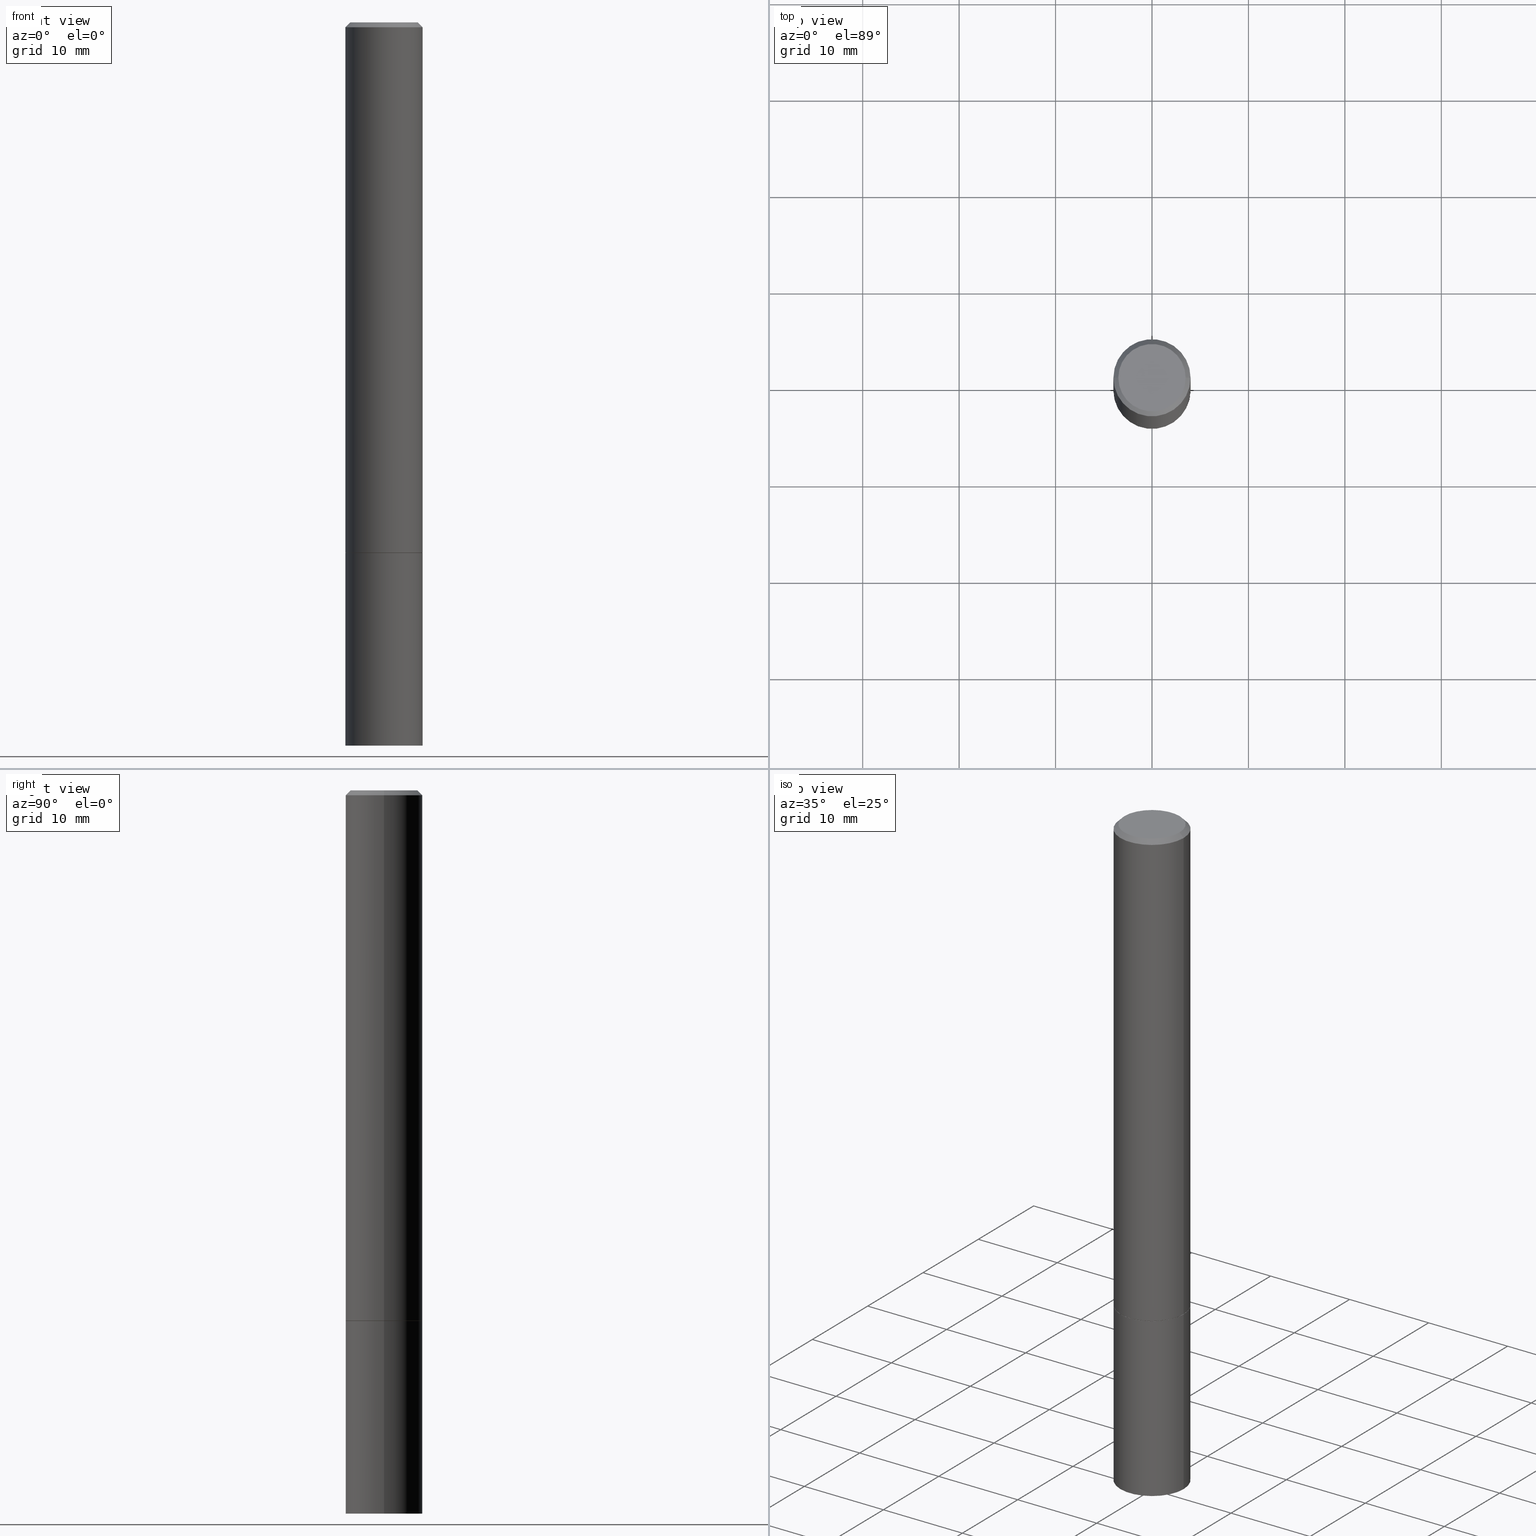
[diagram: canonical four-view strip — front | top / right | iso, engineering-drawing reading convention]
A machine part, canonical four-view strip (front | top / right | iso — engineering-drawing reading convention). The complete STEP part file that produces these views, byte-faithful:
ISO-10303-21;
HEADER;
FILE_DESCRIPTION (( 'STEP AP203' ),
    '1' );
FILE_NAME ('74351.STEP',
    '2024-02-29T09:06:00',
    ( '' ),
    ( '' ),
    'SwSTEP 2.0',
    'SolidWorks 2023',
    '' );
FILE_SCHEMA (( 'CONFIG_CONTROL_DESIGN' ));
ENDSEC;

DATA;
#1 = DIRECTION ( 'NONE',  ( 0.7071067811864992780, -2.468850131081751401E-15, 0.7071067811865957564 ) ) ;
#2 = CC_DESIGN_APPROVAL ( #220, ( #145 ) ) ;
#3 = CARTESIAN_POINT ( 'NONE',  ( 0.1574999999999999178, -8.656778831527689529E-15, -2.164399999999999658 ) ) ;
#4 = CARTESIAN_POINT ( 'NONE',  ( 4.890937612370282792E-31, -6.982962677686303935E-17, -0.02000000000000003858 ) ) ;
#5 = DIRECTION ( 'NONE',  ( -2.445468806185136597E-29, 3.491481338843145583E-15, 1.000000000000000000 ) ) ;
#6 = DIRECTION ( 'NONE',  ( -2.445468806185136597E-29, 3.491481338843145583E-15, 1.000000000000000000 ) ) ;
#7 = AXIS2_PLACEMENT_3D ( 'NONE', #86, #114, #173 ) ;
#8 = DIRECTION ( 'NONE',  ( -2.445468806185136597E-29, 3.491481338843145583E-15, 1.000000000000000000 ) ) ;
#9 = CARTESIAN_POINT ( 'NONE',  ( 0.000000000000000000, 0.000000000000000000, 0.000000000000000000 ) ) ;
#10 = CARTESIAN_POINT ( 'NONE',  ( 0.000000000000000000, 0.000000000000000000, 0.000000000000000000 ) ) ;
#11 = ORIENTED_EDGE ( 'NONE', *, *, #359, .T. ) ;
#12 = PERSON_AND_ORGANIZATION_ROLE ( 'classification_officer' ) ;
#13 = VERTEX_POINT ( 'NONE', #14 ) ;
#14 = CARTESIAN_POINT ( 'NONE',  ( 0.1575000000000000011, -1.140946271907162522E-14, -2.952799999999999869 ) ) ;
#15 = ORIENTED_EDGE ( 'NONE', *, *, #365, .F. ) ;
#16 = ORIENTED_EDGE ( 'NONE', *, *, #40, .T. ) ;
#17 = DIRECTION ( 'NONE',  ( 2.438088387897960049E-29, -3.491481338843145188E-15, -1.000000000000000000 ) ) ;
#18 = DATE_TIME_ROLE ( 'classification_date' ) ;
#19 = CARTESIAN_POINT ( 'NONE',  ( 0.000000000000000000, 0.000000000000000000, 0.000000000000000000 ) ) ;
#20 = APPROVAL ( #201, 'UNSPECIFIED' ) ;
#21 = CLOSED_SHELL ( 'NONE', ( #117, #344, #277, #76, #237, #354, #197, #339 ) ) ;
#22 = VECTOR ( 'NONE', #253, 39.37007874015748143 ) ;
#23 = CARTESIAN_POINT ( 'NONE',  ( 5.292972684107108742E-29, -7.556962209792102838E-15, -2.164399999999999658 ) ) ;
#24 = PLANE ( 'NONE',  #328 ) ;
#25 = CALENDAR_DATE ( 2024, 29, 2 ) ;
#26 = DIRECTION ( 'NONE',  ( -2.445468806185136597E-29, 3.491481338843145583E-15, 1.000000000000000000 ) ) ;
#27 = CLOSED_SHELL ( 'NONE', ( #142, #126, #305, #45 ) ) ;
#28 = CIRCLE ( 'NONE', #67, 0.1575000000000000011 ) ;
#29 = DIRECTION ( 'NONE',  ( -1.000000000000000000, 6.982962677686265922E-15, -4.876176775795935793E-29 ) ) ;
#30 = FACE_OUTER_BOUND ( 'NONE', #66, .T. ) ;
#31 = CARTESIAN_POINT ( 'NONE',  ( -0.1565000000000000002, -6.448454309666390039E-15, -2.165399999999999991 ) ) ;
#32 = ADVANCED_BREP_SHAPE_REPRESENTATION ( '74351', ( #116, #111, #56 ), #134 ) ;
#33 = AXIS2_PLACEMENT_3D ( 'NONE', #107, #238, #332 ) ;
#34 = CARTESIAN_POINT ( 'NONE',  ( 0.1574999999999998346, -1.099816621735585705E-15, 7.679978421878591026E-30 ) ) ;
#35 = CARTESIAN_POINT ( 'NONE',  ( -0.1575000000000000011, -7.815945085411336161E-15, -2.952799999999999869 ) ) ;
#36 = PERSON_AND_ORGANIZATION ( #168, #309 ) ;
#37 = EDGE_LOOP ( 'NONE', ( #183, #352, #129, #358 ) ) ;
#38 = ORIENTED_EDGE ( 'NONE', *, *, #59, .T. ) ;
#39 = LOCAL_TIME ( 4, 6, 0.000000000000000000, #228 ) ;
#40 = EDGE_CURVE ( 'NONE', #99, #259, #213, .T. ) ;
#41 = APPLICATION_PROTOCOL_DEFINITION ( 'international standard', 'config_control_design', 1994, #240 ) ;
#42 = ORIENTED_EDGE ( 'NONE', *, *, #255, .T. ) ;
#43 = DATE_AND_TIME ( #187, #115 ) ;
#44 = ORIENTED_EDGE ( 'NONE', *, *, #359, .F. ) ;
#45 = ADVANCED_FACE ( 'NONE', ( #165 ), #166, .T. ) ;
#46 = EDGE_LOOP ( 'NONE', ( #42, #16 ) ) ;
#47 = DIRECTION ( 'NONE',  ( -2.445468806185136597E-29, 3.491481338843145583E-15, 1.000000000000000000 ) ) ;
#48 = CARTESIAN_POINT ( 'NONE',  ( -0.1574999999999999178, -2.694291109462323887E-15, -2.164399999999999658 ) ) ;
#49 = DIRECTION ( 'NONE',  ( 1.000000000000000000, 0.000000000000000000, 0.000000000000000000 ) ) ;
#50 = FACE_OUTER_BOUND ( 'NONE', #95, .T. ) ;
#51 = CIRCLE ( 'NONE', #198, 0.1374999999999997058 ) ;
#52 = CARTESIAN_POINT ( 'NONE',  ( 0.1374999999999997058, -1.046838268059730322E-15, 4.268512490107428597E-18 ) ) ;
#53 = CARTESIAN_POINT ( 'NONE',  ( 5.295418152913294345E-29, -7.560453691130947423E-15, -2.165399999999999991 ) ) ;
#54 = EDGE_CURVE ( 'NONE', #157, #229, #110, .T. ) ;
#55 = DIRECTION ( 'NONE',  ( 1.000000000000000000, -6.982962677686265922E-15, 4.876176775795935793E-29 ) ) ;
#56 = AXIS2_PLACEMENT_3D ( 'NONE', #10, #353, #49 ) ;
#57 = DIRECTION ( 'NONE',  ( 1.000000000000000000, -6.982962677686267499E-15, 0.000000000000000000 ) ) ;
#58 = DIRECTION ( 'NONE',  ( 2.438088387897960049E-29, -3.491481338843145188E-15, -1.000000000000000000 ) ) ;
#59 = EDGE_CURVE ( 'NONE', #288, #124, #346, .T. ) ;
#60 = CARTESIAN_POINT ( 'NONE',  ( 0.1565000000000000002, -8.653287350188848100E-15, -2.165399999999999991 ) ) ;
#61 = CARTESIAN_POINT ( 'NONE',  ( 5.295418152913294345E-29, -7.560453691130947423E-15, -2.165399999999999991 ) ) ;
#62 = EDGE_CURVE ( 'NONE', #13, #263, #135, .T. ) ;
#63 = ORIENTED_EDGE ( 'NONE', *, *, #171, .T. ) ;
#64 = APPROVAL_ROLE ( '' ) ;
#65 = CIRCLE ( 'NONE', #271, 0.1574999999999999178 ) ;
#66 = EDGE_LOOP ( 'NONE', ( #204, #227, #130, #156 ) ) ;
#67 = AXIS2_PLACEMENT_3D ( 'NONE', #61, #119, #285 ) ;
#68 = PERSON_AND_ORGANIZATION ( #168, #309 ) ;
#69 = ORIENTED_EDGE ( 'NONE', *, *, #311, .F. ) ;
#70 = EDGE_LOOP ( 'NONE', ( #207, #128 ) ) ;
#71 = EDGE_LOOP ( 'NONE', ( #154, #291 ) ) ;
#72 = SECURITY_CLASSIFICATION ( '', '', #261 ) ;
#73 = DIRECTION ( 'NONE',  ( -1.000000000000000000, 6.982962677686265922E-15, -4.876176775795935793E-29 ) ) ;
#74 =( NAMED_UNIT ( * ) SI_UNIT ( $, .STERADIAN. ) SOLID_ANGLE_UNIT ( ) );
#75 = CYLINDRICAL_SURFACE ( 'NONE', #260, 0.1575000000000000011 ) ;
#76 = ADVANCED_FACE ( 'NONE', ( #330 ), #301, .T. ) ;
#77 = CARTESIAN_POINT ( 'NONE',  ( -1.043851414335219820E-46, 1.490343170380447200E-32, 4.268512490100411279E-18 ) ) ;
#78 = VECTOR ( 'NONE', #186, 39.37007874015748143 ) ;
#79 = CC_DESIGN_APPROVAL ( #164, ( #72 ) ) ;
#80 = DIRECTION ( 'NONE',  ( -2.445468806185136597E-29, 3.491481338843145583E-15, 1.000000000000000000 ) ) ;
#81 = LINE ( 'NONE', #256, #88 ) ;
#82 = DIRECTION ( 'NONE',  ( 1.000000000000000000, -6.982962677686265922E-15, 0.000000000000000000 ) ) ;
#83 = AXIS2_PLACEMENT_3D ( 'NONE', #146, #5, #82 ) ;
#84 = CC_DESIGN_PERSON_AND_ORGANIZATION_ASSIGNMENT ( #127, #349, ( #145 ) ) ;
#85 = DIRECTION ( 'NONE',  ( 1.000000000000000000, -6.982962677686265922E-15, 4.876176775795935793E-29 ) ) ;
#86 = CARTESIAN_POINT ( 'NONE',  ( 5.295418152913294345E-29, -7.560453691130947423E-15, -2.165399999999999991 ) ) ;
#87 = DIRECTION ( 'NONE',  ( -2.445468806185136877E-29, 3.491481338843145188E-15, 1.000000000000000000 ) ) ;
#88 = VECTOR ( 'NONE', #257, 39.37007874015748143 ) ;
#89 = DATE_TIME_ROLE ( 'creation_date' ) ;
#90 = PRODUCT_DEFINITION_SHAPE ( 'NONE', 'NONE',  #145 ) ;
#91 =( NAMED_UNIT ( * ) PLANE_ANGLE_UNIT ( ) SI_UNIT ( $, .RADIAN. ) );
#92 = ORIENTED_EDGE ( 'NONE', *, *, #274, .F. ) ;
#93 = DESIGN_CONTEXT ( 'detailed design', #276, 'design' ) ;
#94 = LENGTH_MEASURE_WITH_UNIT ( LENGTH_MEASURE( 0.02539999999999999897 ), #175 );
#95 = EDGE_LOOP ( 'NONE', ( #38, #322, #321, #312 ) ) ;
#96 = APPLICATION_PROTOCOL_DEFINITION ( 'international standard', 'config_control_design', 1994, #276 ) ;
#97 = ORIENTED_EDGE ( 'NONE', *, *, #245, .T. ) ;
#98 = CONICAL_SURFACE ( 'NONE', #302, 0.1565000000000000002, 0.7853981633973801113 ) ;
#99 = VERTEX_POINT ( 'NONE', #52 ) ;
#100 = ORIENTED_EDGE ( 'NONE', *, *, #62, .F. ) ;
#101 = DIRECTION ( 'NONE',  ( 0.7071067811865466846, -7.319954787623252890E-15, -0.7071067811865483499 ) ) ;
#102 = VECTOR ( 'NONE', #275, 39.37007874015748143 ) ;
#103 = CIRCLE ( 'NONE', #179, 0.1575000000000000011 ) ;
#104 = CALENDAR_DATE ( 2024, 29, 2 ) ;
#105 = EDGE_CURVE ( 'NONE', #229, #125, #366, .T. ) ;
#106 = DIRECTION ( 'NONE',  ( -2.445468806185136597E-29, 3.491481338843145583E-15, 1.000000000000000000 ) ) ;
#107 = CARTESIAN_POINT ( 'NONE',  ( 4.890937612370282792E-31, -6.982962677686303935E-17, -0.02000000000000003858 ) ) ;
#108 = DATE_AND_TIME ( #25, #323 ) ;
#109 = CARTESIAN_POINT ( 'NONE',  ( 0.000000000000000000, 0.000000000000000000, 0.000000000000000000 ) ) ;
#110 = CIRCLE ( 'NONE', #233, 0.1574999999999999178 ) ;
#111 = MANIFOLD_SOLID_BREP ( 'Body-Move/Copy2[2]', #21 ) ;
#112 = CARTESIAN_POINT ( 'NONE',  ( 5.295418152913294345E-29, -7.560453691130947423E-15, -2.165399999999999991 ) ) ;
#113 = CARTESIAN_POINT ( 'NONE',  ( 4.890937612370282792E-31, -6.982962677686303935E-17, -0.02000000000000003858 ) ) ;
#114 = DIRECTION ( 'NONE',  ( -2.445468806185136597E-29, 3.491481338843145583E-15, 1.000000000000000000 ) ) ;
#115 = LOCAL_TIME ( 4, 6, 0.000000000000000000, #176 ) ;
#116 = MANIFOLD_SOLID_BREP ( 'Body-Move/Copy2[1]', #27 ) ;
#117 = ADVANCED_FACE ( 'NONE', ( #50 ), #121, .T. ) ;
#118 = CARTESIAN_POINT ( 'NONE',  ( 5.295418152913294345E-29, -7.560453691130947423E-15, -2.165399999999999991 ) ) ;
#119 = DIRECTION ( 'NONE',  ( -2.445468806185136597E-29, 3.491481338843145583E-15, 1.000000000000000000 ) ) ;
#120 = LINE ( 'NONE', #34, #289 ) ;
#121 = CONICAL_SURFACE ( 'NONE', #316, 0.1565000000000000002, 0.7853981633973801113 ) ;
#122 = APPROVAL_PERSON_ORGANIZATION ( #132, #164, #362 ) ;
#123 = DATE_AND_TIME ( #180, #190 ) ;
#124 = VERTEX_POINT ( 'NONE', #278 ) ;
#125 = VERTEX_POINT ( 'NONE', #209 ) ;
#126 = ADVANCED_FACE ( 'NONE', ( #137 ), #24, .T. ) ;
#127 = PERSON_AND_ORGANIZATION ( #168, #309 ) ;
#128 = ORIENTED_EDGE ( 'NONE', *, *, #264, .F. ) ;
#129 = ORIENTED_EDGE ( 'NONE', *, *, #348, .T. ) ;
#130 = ORIENTED_EDGE ( 'NONE', *, *, #245, .F. ) ;
#131 = LINE ( 'NONE', #246, #307 ) ;
#132 = PERSON_AND_ORGANIZATION ( #168, #309 ) ;
#133 = DIRECTION ( 'NONE',  ( -2.445468806185136597E-29, 3.491481338843145583E-15, 1.000000000000000000 ) ) ;
#134 =( GEOMETRIC_REPRESENTATION_CONTEXT ( 3 ) GLOBAL_UNCERTAINTY_ASSIGNED_CONTEXT ( ( #297 ) ) GLOBAL_UNIT_ASSIGNED_CONTEXT ( ( #298, #91, #74 ) ) REPRESENTATION_CONTEXT ( 'NONE', 'WORKASPACE' ) );
#135 = LINE ( 'NONE', #299, #102 ) ;
#136 = DIRECTION ( 'NONE',  ( -2.445468806185136877E-29, 3.491481338843145188E-15, 1.000000000000000000 ) ) ;
#137 = FACE_OUTER_BOUND ( 'NONE', #181, .T. ) ;
#138 = APPROVAL_PERSON_ORGANIZATION ( #68, #20, #320 ) ;
#139 = DIRECTION ( 'NONE',  ( -1.000000000000000000, 6.982962677686265922E-15, 0.000000000000000000 ) ) ;
#140 = CC_DESIGN_DATE_AND_TIME_ASSIGNMENT ( #351, #18, ( #72 ) ) ;
#141 = CARTESIAN_POINT ( 'NONE',  ( 0.1575000000000000011, -8.660270312866534114E-15, -2.165399999999999991 ) ) ;
#142 = ADVANCED_FACE ( 'NONE', ( #210 ), #75, .T. ) ;
#143 = DIRECTION ( 'NONE',  ( -1.000000000000000000, 6.982962677686265922E-15, -4.876176775795935793E-29 ) ) ;
#144 = DIRECTION ( 'NONE',  ( 1.000000000000000000, -6.982962677686261977E-15, 0.000000000000000000 ) ) ;
#145 = PRODUCT_DEFINITION ( 'UNKNOWN', '', #272, #93 ) ;
#146 = CARTESIAN_POINT ( 'NONE',  ( 4.890937612370282792E-31, -6.982962677686303935E-17, -0.02000000000000003858 ) ) ;
#147 = COORDINATED_UNIVERSAL_TIME_OFFSET ( 5, 0, .BEHIND. ) ;
#148 = ORIENTED_EDGE ( 'NONE', *, *, #62, .T. ) ;
#149 = CC_DESIGN_APPROVAL ( #20, ( #272 ) ) ;
#150 = APPROVAL_DATE_TIME ( #43, #20 ) ;
#151 = ORIENTED_EDGE ( 'NONE', *, *, #40, .F. ) ;
#152 = EDGE_CURVE ( 'NONE', #290, #286, #248, .T. ) ;
#153 = MECHANICAL_CONTEXT ( 'NONE', #240, 'mechanical' ) ;
#154 = ORIENTED_EDGE ( 'NONE', *, *, #334, .T. ) ;
#155 = PERSON_AND_ORGANIZATION ( #168, #309 ) ;
#156 = ORIENTED_EDGE ( 'NONE', *, *, #348, .F. ) ;
#157 = VERTEX_POINT ( 'NONE', #3 ) ;
#158 = AXIS2_PLACEMENT_3D ( 'NONE', #279, #310, #221 ) ;
#159 = DIRECTION ( 'NONE',  ( 1.000000000000000000, -6.982962677686267499E-15, 0.000000000000000000 ) ) ;
#160 = FACE_OUTER_BOUND ( 'NONE', #37, .T. ) ;
#161 = APPROVAL_STATUS ( 'not_yet_approved' ) ;
#162 = PLANE ( 'NONE',  #361 ) ;
#163 = AXIS2_PLACEMENT_3D ( 'NONE', #19, #133, #85 ) ;
#164 = APPROVAL ( #161, 'UNSPECIFIED' ) ;
#165 = FACE_OUTER_BOUND ( 'NONE', #265, .T. ) ;
#166 = CYLINDRICAL_SURFACE ( 'NONE', #254, 0.1575000000000000011 ) ;
#167 = DIRECTION ( 'NONE',  ( 1.000000000000000000, -6.982962677686265922E-15, 0.000000000000000000 ) ) ;
#168 = PERSON ( 'UNSPECIFIED', 'UNSPECIFIED', 'UNSPECIFIED', ('UNSPECIFIED'), ('UNSPECIFIED'), ('UNSPECIFIED') ) ;
#169 = VECTOR ( 'NONE', #136, 39.37007874015748143 ) ;
#170 = CARTESIAN_POINT ( 'NONE',  ( 7.220980290903470182E-29, -1.030964609733603853E-14, -2.952799999999999869 ) ) ;
#171 = EDGE_CURVE ( 'NONE', #99, #262, #131, .T. ) ;
#172 = FACE_OUTER_BOUND ( 'NONE', #46, .T. ) ;
#173 = DIRECTION ( 'NONE',  ( 1.000000000000000000, -6.982962677686268288E-15, 0.000000000000000000 ) ) ;
#174 = DIRECTION ( 'NONE',  ( 1.000000000000000000, -6.982962677686267499E-15, 0.000000000000000000 ) ) ;
#175 =( LENGTH_UNIT ( ) NAMED_UNIT ( * ) SI_UNIT ( $, .METRE. ) );
#176 = COORDINATED_UNIVERSAL_TIME_OFFSET ( 5, 0, .BEHIND. ) ;
#177 = CC_DESIGN_PERSON_AND_ORGANIZATION_ASSIGNMENT ( #155, #287, ( #272 ) ) ;
#178 = ORIENTED_EDGE ( 'NONE', *, *, #334, .F. ) ;
#179 = AXIS2_PLACEMENT_3D ( 'NONE', #170, #281, #144 ) ;
#180 = CALENDAR_DATE ( 2024, 29, 2 ) ;
#181 = EDGE_LOOP ( 'NONE', ( #266, #44 ) ) ;
#182 = PERSON_AND_ORGANIZATION ( #168, #309 ) ;
#183 = ORIENTED_EDGE ( 'NONE', *, *, #105, .F. ) ;
#184 = ORIENTED_EDGE ( 'NONE', *, *, #311, .T. ) ;
#185 = DIRECTION ( 'NONE',  ( 1.000000000000000000, -6.982962677686265922E-15, 4.876173381029110692E-29 ) ) ;
#186 = DIRECTION ( 'NONE',  ( -2.445468806185136877E-29, 3.491481338843145188E-15, 1.000000000000000000 ) ) ;
#187 = CALENDAR_DATE ( 2024, 29, 2 ) ;
#188 = DIRECTION ( 'NONE',  ( -2.445468806185136597E-29, 3.491481338843145583E-15, 1.000000000000000000 ) ) ;
#189 = DIRECTION ( 'NONE',  ( -2.445468806185136597E-29, 3.491481338843145583E-15, 1.000000000000000000 ) ) ;
#190 = LOCAL_TIME ( 4, 6, 0.000000000000000000, #147 ) ;
#191 = CARTESIAN_POINT ( 'NONE',  ( 0.000000000000000000, 0.000000000000000000, 0.000000000000000000 ) ) ;
#192 = CYLINDRICAL_SURFACE ( 'NONE', #219, 0.1574999999999998346 ) ;
#193 = CARTESIAN_POINT ( 'NONE',  ( 5.295418152913294345E-29, -7.560453691130947423E-15, -2.165399999999999991 ) ) ;
#194 = CIRCLE ( 'NONE', #158, 0.1575000000000000011 ) ;
#195 = DIRECTION ( 'NONE',  ( 1.000000000000000000, -6.982962677686265922E-15, 4.876173381029110692E-29 ) ) ;
#196 = FACE_OUTER_BOUND ( 'NONE', #71, .T. ) ;
#197 = ADVANCED_FACE ( 'NONE', ( #304 ), #162, .F. ) ;
#198 = AXIS2_PLACEMENT_3D ( 'NONE', #313, #217, #195 ) ;
#199 = PERSON_AND_ORGANIZATION ( #168, #309 ) ;
#200 = CC_DESIGN_DATE_AND_TIME_ASSIGNMENT ( #205, #89, ( #145 ) ) ;
#201 = APPROVAL_STATUS ( 'not_yet_approved' ) ;
#202 = ORIENTED_EDGE ( 'NONE', *, *, #264, .T. ) ;
#203 = EDGE_CURVE ( 'NONE', #288, #157, #360, .T. ) ;
#204 = ORIENTED_EDGE ( 'NONE', *, *, #54, .T. ) ;
#205 = DATE_AND_TIME ( #345, #317 ) ;
#206 = EDGE_LOOP ( 'NONE', ( #357, #355, #184, #350 ) ) ;
#207 = ORIENTED_EDGE ( 'NONE', *, *, #59, .F. ) ;
#208 = ORIENTED_EDGE ( 'NONE', *, *, #222, .F. ) ;
#209 = CARTESIAN_POINT ( 'NONE',  ( -0.1574999999999996958, 1.029986994958721618E-15, -0.02000000000000003858 ) ) ;
#210 = FACE_OUTER_BOUND ( 'NONE', #235, .T. ) ;
#211 = DIRECTION ( 'NONE',  ( 1.000000000000000000, -6.982962677686267499E-15, 0.000000000000000000 ) ) ;
#212 = CARTESIAN_POINT ( 'NONE',  ( 5.292972684107108742E-29, -7.556962209792102838E-15, -2.164399999999999658 ) ) ;
#213 = CIRCLE ( 'NONE', #225, 0.1374999999999997058 ) ;
#214 = CARTESIAN_POINT ( 'NONE',  ( 5.295418152913294345E-29, -7.560453691130947423E-15, -2.165399999999999991 ) ) ;
#215 = COORDINATED_UNIVERSAL_TIME_OFFSET ( 5, 0, .BEHIND. ) ;
#216 = CARTESIAN_POINT ( 'NONE',  ( 0.1574999999999996958, -1.150358061425877105E-15, -0.02000000000000003858 ) ) ;
#217 = DIRECTION ( 'NONE',  ( -2.445468806185136597E-29, 3.491481338843145583E-15, 1.000000000000000000 ) ) ;
#218 = AXIS2_PLACEMENT_3D ( 'NONE', #53, #106, #159 ) ;
#219 = AXIS2_PLACEMENT_3D ( 'NONE', #9, #340, #55 ) ;
#220 = APPROVAL ( #258, 'UNSPECIFIED' ) ;
#221 = DIRECTION ( 'NONE',  ( 1.000000000000000000, -6.982962677686261977E-15, 0.000000000000000000 ) ) ;
#222 = EDGE_CURVE ( 'NONE', #229, #157, #65, .T. ) ;
#223 = LINE ( 'NONE', #31, #22 ) ;
#224 = PLANE ( 'NONE',  #347 ) ;
#225 = AXIS2_PLACEMENT_3D ( 'NONE', #77, #189, #185 ) ;
#226 = CIRCLE ( 'NONE', #249, 0.1565000000000000002 ) ;
#227 = ORIENTED_EDGE ( 'NONE', *, *, #105, .T. ) ;
#228 = COORDINATED_UNIVERSAL_TIME_OFFSET ( 5, 0, .BEHIND. ) ;
#229 = VERTEX_POINT ( 'NONE', #48 ) ;
#230 = PRODUCT ( '74351', '74351', '', ( #153 ) ) ;
#231 = PERSON_AND_ORGANIZATION ( #168, #309 ) ;
#232 = ORIENTED_EDGE ( 'NONE', *, *, #152, .T. ) ;
#233 = AXIS2_PLACEMENT_3D ( 'NONE', #23, #47, #244 ) ;
#234 = AXIS2_PLACEMENT_3D ( 'NONE', #4, #6, #167 ) ;
#235 = EDGE_LOOP ( 'NONE', ( #324, #232, #178, #100 ) ) ;
#236 = EDGE_LOOP ( 'NONE', ( #151, #63, #97, #69 ) ) ;
#237 = ADVANCED_FACE ( 'NONE', ( #160 ), #268, .T. ) ;
#238 = DIRECTION ( 'NONE',  ( 2.445468806185136597E-29, -3.491481338843145583E-15, -1.000000000000000000 ) ) ;
#239 = CC_DESIGN_PERSON_AND_ORGANIZATION_ASSIGNMENT ( #36, #241, ( #230 ) ) ;
#240 = APPLICATION_CONTEXT ( 'configuration controlled 3d designs of mechanical parts and assemblies' ) ;
#241 = PERSON_AND_ORGANIZATION_ROLE ( 'design_owner' ) ;
#242 = VECTOR ( 'NONE', #1, 39.37007874015748143 ) ;
#243 = APPROVAL_PERSON_ORGANIZATION ( #231, #220, #64 ) ;
#244 = DIRECTION ( 'NONE',  ( 1.000000000000000000, -6.982962677686265922E-15, 0.000000000000000000 ) ) ;
#245 = EDGE_CURVE ( 'NONE', #262, #125, #335, .T. ) ;
#246 = CARTESIAN_POINT ( 'NONE',  ( 0.1574999999999996958, -1.150358061425877105E-15, -0.02000000000000003858 ) ) ;
#247 = DIRECTION ( 'NONE',  ( -2.438088387897960049E-29, 3.491481338843145188E-15, 1.000000000000000000 ) ) ;
#248 = LINE ( 'NONE', #333, #169 ) ;
#249 = AXIS2_PLACEMENT_3D ( 'NONE', #118, #8, #174 ) ;
#250 = FACE_OUTER_BOUND ( 'NONE', #327, .T. ) ;
#251 = CARTESIAN_POINT ( 'NONE',  ( 1.099816621735639545E-15, 0.1574999999999924516, -2.165400000000000436 ) ) ;
#252 = CC_DESIGN_PERSON_AND_ORGANIZATION_ASSIGNMENT ( #182, #318, ( #272 ) ) ;
#253 = DIRECTION ( 'NONE',  ( -0.7071067811864992780, 7.493145998870180611E-15, 0.7071067811865957564 ) ) ;
#254 = AXIS2_PLACEMENT_3D ( 'NONE', #109, #26, #303 ) ;
#255 = EDGE_CURVE ( 'NONE', #259, #99, #51, .T. ) ;
#256 = CARTESIAN_POINT ( 'NONE',  ( -0.1574999999999996958, 1.029986994958721618E-15, -0.02000000000000003858 ) ) ;
#257 = DIRECTION ( 'NONE',  ( -0.7071067811865466846, 2.468850131082247989E-15, -0.7071067811865483499 ) ) ;
#258 = APPROVAL_STATUS ( 'not_yet_approved' ) ;
#259 = VERTEX_POINT ( 'NONE', #282 ) ;
#260 = AXIS2_PLACEMENT_3D ( 'NONE', #191, #188, #296 ) ;
#261 = SECURITY_CLASSIFICATION_LEVEL ( 'unclassified' ) ;
#262 = VERTEX_POINT ( 'NONE', #216 ) ;
#263 = VERTEX_POINT ( 'NONE', #141 ) ;
#264 = EDGE_CURVE ( 'NONE', #124, #288, #226, .T. ) ;
#265 = EDGE_LOOP ( 'NONE', ( #325, #11, #148, #92 ) ) ;
#266 = ORIENTED_EDGE ( 'NONE', *, *, #269, .F. ) ;
#267 = CARTESIAN_POINT ( 'NONE',  ( -0.1574999999999998346, 1.119104808822156617E-15, -7.747322767151467176E-30 ) ) ;
#268 = CYLINDRICAL_SURFACE ( 'NONE', #163, 0.1574999999999998346 ) ;
#269 = EDGE_CURVE ( 'NONE', #13, #290, #194, .T. ) ;
#270 = COORDINATED_UNIVERSAL_TIME_OFFSET ( 5, 0, .BEHIND. ) ;
#271 = AXIS2_PLACEMENT_3D ( 'NONE', #212, #80, #337 ) ;
#272 = PRODUCT_DEFINITION_FORMATION_WITH_SPECIFIED_SOURCE ( 'ANY', '', #230, .NOT_KNOWN. ) ;
#273 = CARTESIAN_POINT ( 'NONE',  ( 0.1565000000000000002, -8.653287350188848100E-15, -2.165399999999999991 ) ) ;
#274 = EDGE_CURVE ( 'NONE', #286, #263, #28, .T. ) ;
#275 = DIRECTION ( 'NONE',  ( -2.445468806185136877E-29, 3.491481338843145188E-15, 1.000000000000000000 ) ) ;
#276 = APPLICATION_CONTEXT ( 'configuration controlled 3d designs of mechanical parts and assemblies' ) ;
#277 = ADVANCED_FACE ( 'NONE', ( #306 ), #284, .T. ) ;
#278 = CARTESIAN_POINT ( 'NONE',  ( -0.1565000000000000002, -6.443155855318168425E-15, -2.165399999999999991 ) ) ;
#279 = CARTESIAN_POINT ( 'NONE',  ( 7.220980290903470182E-29, -1.030964609733603853E-14, -2.952799999999999869 ) ) ;
#280 = CIRCLE ( 'NONE', #83, 0.1574999999999996958 ) ;
#281 = DIRECTION ( 'NONE',  ( -2.445468806185136597E-29, 3.491481338843145583E-15, 1.000000000000000000 ) ) ;
#282 = CARTESIAN_POINT ( 'NONE',  ( -0.1374999999999997058, 9.950721815702905608E-16, 4.268512490093574228E-18 ) ) ;
#283 = CARTESIAN_POINT ( 'NONE',  ( 9.601573681818595033E-16, 0.1374999999999997058, -4.779444278458812147E-16 ) ) ;
#284 = CONICAL_SURFACE ( 'NONE', #356, 0.1574999999999996958, 0.7853981633974471688 ) ;
#285 = DIRECTION ( 'NONE',  ( 1.000000000000000000, -6.982962677686268288E-15, 0.000000000000000000 ) ) ;
#286 = VERTEX_POINT ( 'NONE', #338 ) ;
#287 = PERSON_AND_ORGANIZATION_ROLE ( 'creator' ) ;
#288 = VERTEX_POINT ( 'NONE', #60 ) ;
#289 = VECTOR ( 'NONE', #87, 39.37007874015748143 ) ;
#290 = VERTEX_POINT ( 'NONE', #35 ) ;
#291 = ORIENTED_EDGE ( 'NONE', *, *, #274, .T. ) ;
#292 = ORIENTED_EDGE ( 'NONE', *, *, #203, .T. ) ;
#293 = CIRCLE ( 'NONE', #7, 0.1575000000000000011 ) ;
#294 = CC_DESIGN_PERSON_AND_ORGANIZATION_ASSIGNMENT ( #199, #12, ( #72 ) ) ;
#295 = DIRECTION ( 'NONE',  ( 1.000000000000000000, -6.982962677686265922E-15, 4.876176775795935793E-29 ) ) ;
#296 = DIRECTION ( 'NONE',  ( 1.000000000000000000, -6.982962677686265922E-15, 4.876176775795935232E-29 ) ) ;
#297 = UNCERTAINTY_MEASURE_WITH_UNIT (LENGTH_MEASURE( 1.000000000000000082E-05 ), #298, 'distance_accuracy_value', 'NONE');
#298 =( CONVERSION_BASED_UNIT ( 'INCH', #94 ) LENGTH_UNIT ( ) NAMED_UNIT ( #319 ) );
#299 = CARTESIAN_POINT ( 'NONE',  ( 0.1575000000000000011, -1.099816621735586889E-15, 7.679978421878598033E-30 ) ) ;
#300 = SHAPE_DEFINITION_REPRESENTATION ( #90, #32 ) ;
#301 = CONICAL_SURFACE ( 'NONE', #33, 0.1574999999999996958, 0.7853981633974471688 ) ;
#302 = AXIS2_PLACEMENT_3D ( 'NONE', #193, #308, #57 ) ;
#303 = DIRECTION ( 'NONE',  ( 1.000000000000000000, -6.982962677686265922E-15, 4.876176775795935232E-29 ) ) ;
#304 = FACE_OUTER_BOUND ( 'NONE', #70, .T. ) ;
#305 = ADVANCED_FACE ( 'NONE', ( #196 ), #224, .F. ) ;
#306 = FACE_OUTER_BOUND ( 'NONE', #236, .T. ) ;
#307 = VECTOR ( 'NONE', #101, 39.37007874015748143 ) ;
#308 = DIRECTION ( 'NONE',  ( -2.445468806185136597E-29, 3.491481338843145583E-15, 1.000000000000000000 ) ) ;
#309 = ORGANIZATION ( 'UNSPECIFIED', 'UNSPECIFIED', '' ) ;
#310 = DIRECTION ( 'NONE',  ( -2.445468806185136597E-29, 3.491481338843145583E-15, 1.000000000000000000 ) ) ;
#311 = EDGE_CURVE ( 'NONE', #259, #125, #81, .T. ) ;
#312 = ORIENTED_EDGE ( 'NONE', *, *, #203, .F. ) ;
#313 = CARTESIAN_POINT ( 'NONE',  ( -1.043851414335219820E-46, 1.490343170380447200E-32, 4.268512490100411279E-18 ) ) ;
#314 = EDGE_CURVE ( 'NONE', #125, #262, #280, .T. ) ;
#315 = DIRECTION ( 'NONE',  ( 2.445468806185136597E-29, -3.491481338843145583E-15, -1.000000000000000000 ) ) ;
#316 = AXIS2_PLACEMENT_3D ( 'NONE', #112, #336, #211 ) ;
#317 = LOCAL_TIME ( 4, 6, 0.000000000000000000, #270 ) ;
#318 = PERSON_AND_ORGANIZATION_ROLE ( 'design_supplier' ) ;
#319 = DIMENSIONAL_EXPONENTS ( 1.000000000000000000, 0.000000000000000000, 0.000000000000000000, 0.000000000000000000, 0.000000000000000000, 0.000000000000000000, 0.000000000000000000 ) ;
#320 = APPROVAL_ROLE ( '' ) ;
#321 = ORIENTED_EDGE ( 'NONE', *, *, #54, .F. ) ;
#322 = ORIENTED_EDGE ( 'NONE', *, *, #365, .T. ) ;
#323 = LOCAL_TIME ( 4, 6, 0.000000000000000000, #215 ) ;
#324 = ORIENTED_EDGE ( 'NONE', *, *, #269, .T. ) ;
#325 = ORIENTED_EDGE ( 'NONE', *, *, #152, .F. ) ;
#326 = PRODUCT_RELATED_PRODUCT_CATEGORY ( 'detail', '', ( #230 ) ) ;
#327 = EDGE_LOOP ( 'NONE', ( #15, #202, #292, #208 ) ) ;
#328 = AXIS2_PLACEMENT_3D ( 'NONE', #363, #17, #73 ) ;
#329 = CC_DESIGN_SECURITY_CLASSIFICATION ( #72, ( #272 ) ) ;
#330 = FACE_OUTER_BOUND ( 'NONE', #206, .T. ) ;
#331 = APPROVAL_DATE_TIME ( #123, #220 ) ;
#332 = DIRECTION ( 'NONE',  ( -1.000000000000000000, 6.982962677686265922E-15, 0.000000000000000000 ) ) ;
#333 = CARTESIAN_POINT ( 'NONE',  ( -0.1575000000000000011, 1.119104808822157801E-15, -7.747322767151475583E-30 ) ) ;
#334 = EDGE_CURVE ( 'NONE', #263, #286, #293, .T. ) ;
#335 = CIRCLE ( 'NONE', #234, 0.1574999999999996958 ) ;
#336 = DIRECTION ( 'NONE',  ( -2.445468806185136597E-29, 3.491481338843145583E-15, 1.000000000000000000 ) ) ;
#337 = DIRECTION ( 'NONE',  ( 1.000000000000000000, -6.982962677686265922E-15, 0.000000000000000000 ) ) ;
#338 = CARTESIAN_POINT ( 'NONE',  ( -0.1575000000000000011, -7.815945085411336161E-15, -2.165399999999999991 ) ) ;
#339 = ADVANCED_FACE ( 'NONE', ( #172 ), #343, .F. ) ;
#340 = DIRECTION ( 'NONE',  ( -2.445468806185136597E-29, 3.491481338843145583E-15, 1.000000000000000000 ) ) ;
#341 = AXIS2_PLACEMENT_3D ( 'NONE', #283, #58, #143 ) ;
#342 = DIRECTION ( 'NONE',  ( 2.438088387897960049E-29, -3.491481338843145188E-15, -1.000000000000000000 ) ) ;
#343 = PLANE ( 'NONE',  #341 ) ;
#344 = ADVANCED_FACE ( 'NONE', ( #30 ), #192, .T. ) ;
#345 = CALENDAR_DATE ( 2024, 29, 2 ) ;
#346 = CIRCLE ( 'NONE', #218, 0.1565000000000000002 ) ;
#347 = AXIS2_PLACEMENT_3D ( 'NONE', #251, #342, #29 ) ;
#348 = EDGE_CURVE ( 'NONE', #157, #262, #120, .T. ) ;
#349 = PERSON_AND_ORGANIZATION_ROLE ( 'creator' ) ;
#350 = ORIENTED_EDGE ( 'NONE', *, *, #314, .T. ) ;
#351 = DATE_AND_TIME ( #104, #39 ) ;
#352 = ORIENTED_EDGE ( 'NONE', *, *, #222, .T. ) ;
#353 = DIRECTION ( 'NONE',  ( 0.000000000000000000, 0.000000000000000000, 1.000000000000000000 ) ) ;
#354 = ADVANCED_FACE ( 'NONE', ( #250 ), #98, .T. ) ;
#355 = ORIENTED_EDGE ( 'NONE', *, *, #255, .F. ) ;
#356 = AXIS2_PLACEMENT_3D ( 'NONE', #113, #315, #139 ) ;
#357 = ORIENTED_EDGE ( 'NONE', *, *, #171, .F. ) ;
#358 = ORIENTED_EDGE ( 'NONE', *, *, #314, .F. ) ;
#359 = EDGE_CURVE ( 'NONE', #290, #13, #103, .T. ) ;
#360 = LINE ( 'NONE', #273, #242 ) ;
#361 = AXIS2_PLACEMENT_3D ( 'NONE', #214, #247, #295 ) ;
#362 = APPROVAL_ROLE ( '' ) ;
#363 = CARTESIAN_POINT ( 'NONE',  ( 1.099816621735659069E-15, 0.1574999999999896760, -2.952800000000000313 ) ) ;
#364 = APPROVAL_DATE_TIME ( #108, #164 ) ;
#365 = EDGE_CURVE ( 'NONE', #124, #229, #223, .T. ) ;
#366 = LINE ( 'NONE', #267, #78 ) ;
ENDSEC;
END-ISO-10303-21;
